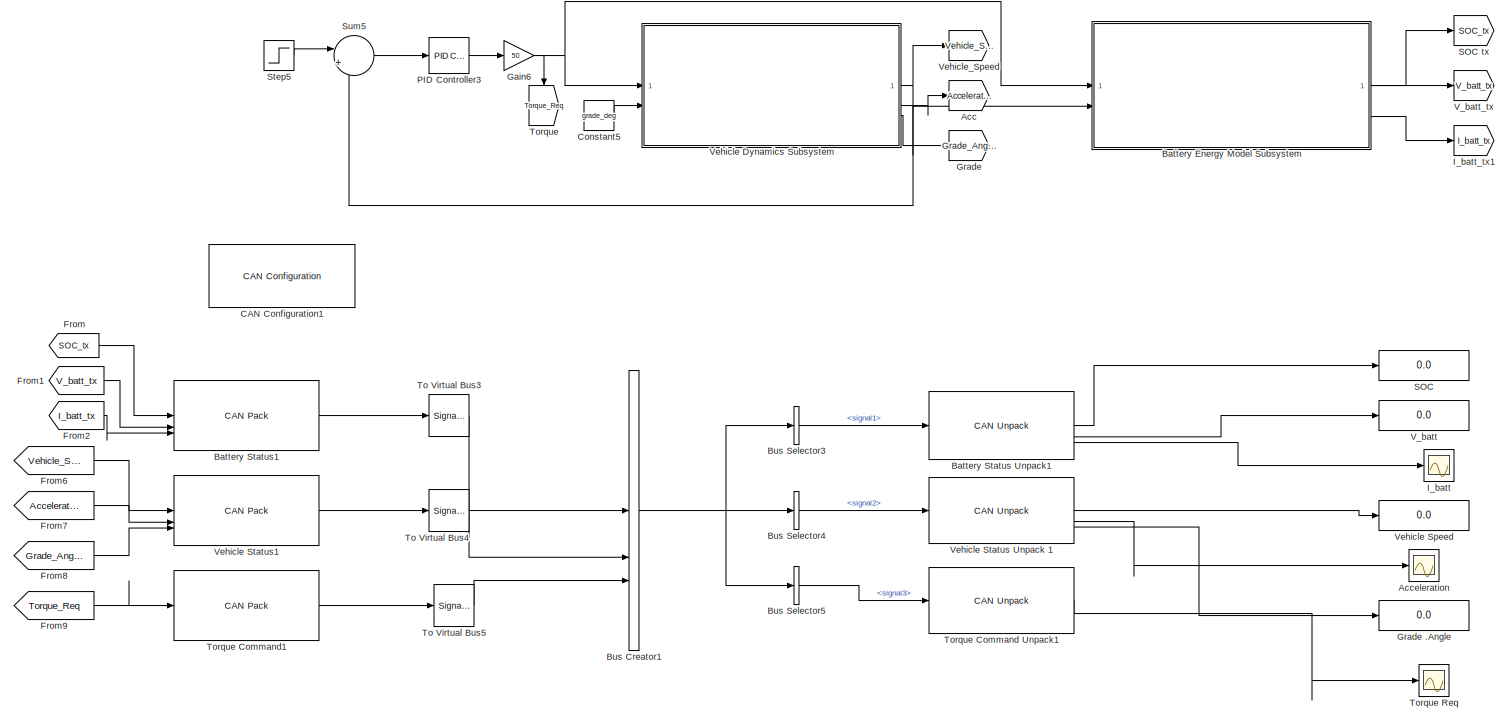
[diagram: root canvas - part 1/5, top left region]
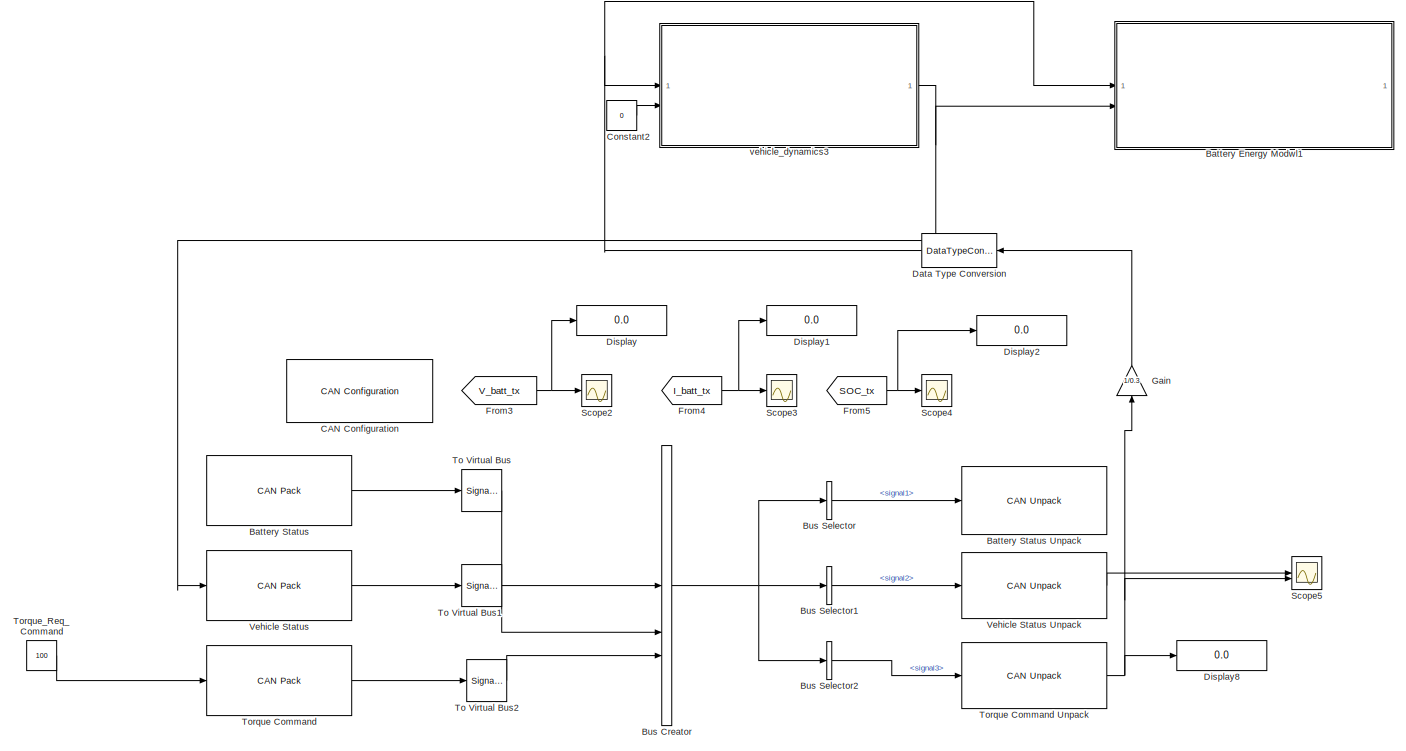
[diagram: root canvas - part 2/5, top right region]
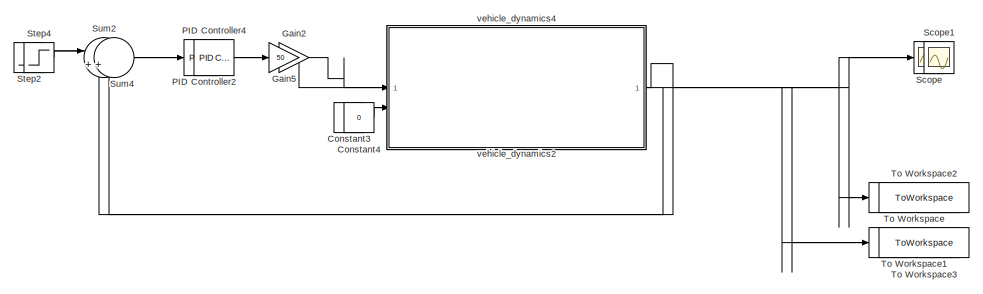
[diagram: root canvas - part 3/5, bottom right region]
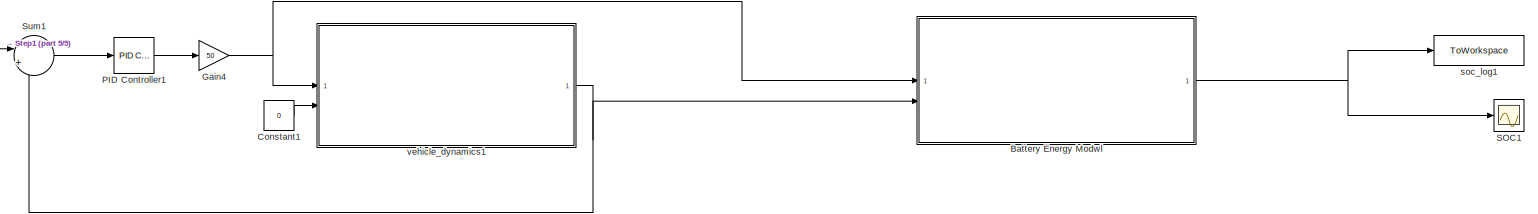
[diagram: root canvas - part 4/5, bottom right region]
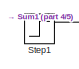
[diagram: root canvas - part 5/5, bottom right region]
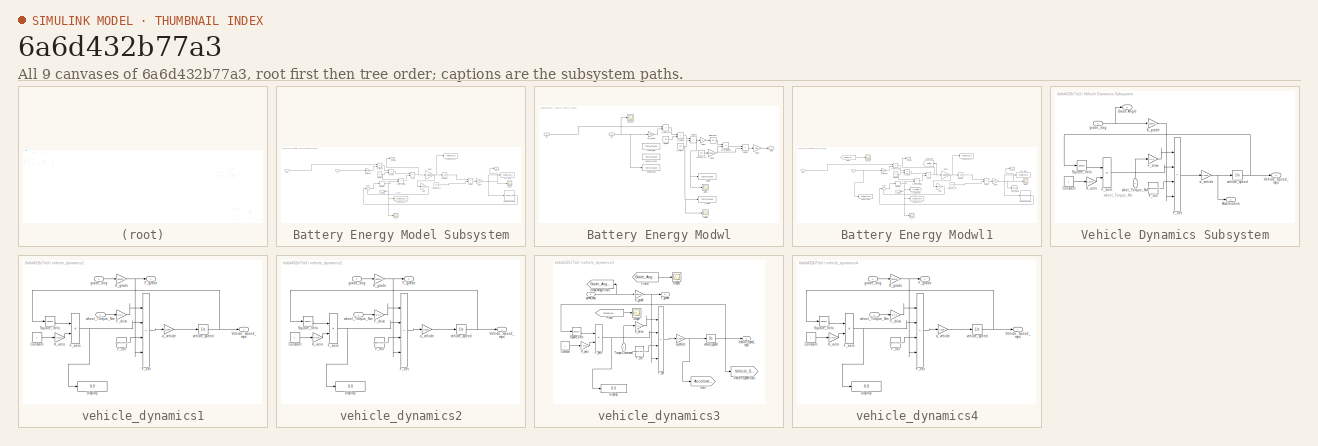
[diagram: thumbnail index - all 9 canvases of the model, root first then tree order]
MODEL slx_6a6d432b77a3
KIND model
CONFIG AbsTol = auto
CONFIG EnableMultiTasking = off
CONFIG FixedStep = auto
CONFIG MaxStep = auto
CONFIG MinStep = auto
CONFIG RelTol = 1e-3
CONFIG SampleTimeConstraint = Unconstrained
CONFIG SolverName = VariableStepAuto
CONFIG StartTime = 0.0
CONFIG StopTime = 10
BLOCK [Goto] Acc
  GotoTag = Acceleration
BLOCK [Scope] Acceleration
  Floating = off
  NumInputPorts = 1
  ScopeSpecificationString = Simulink.scopes.TimeScopeBlockCfg('CurrentConfiguration', extmgr.ConfigurationSet(extmgr.Configuration('Core','General UI',true),extmgr.Configuration('Core','Source UI',true),extmgr.Configuration('Sources','WiredSimulink',true,'DataLoggingVariableName','ScopeData4'),extmgr.Configuration('Visuals','Time Domain',true,'SerializedDisplays',{struct('MinYLimReal','-9.13','MaxYLimReal','82.17','YLabelRea...<+1405ch>
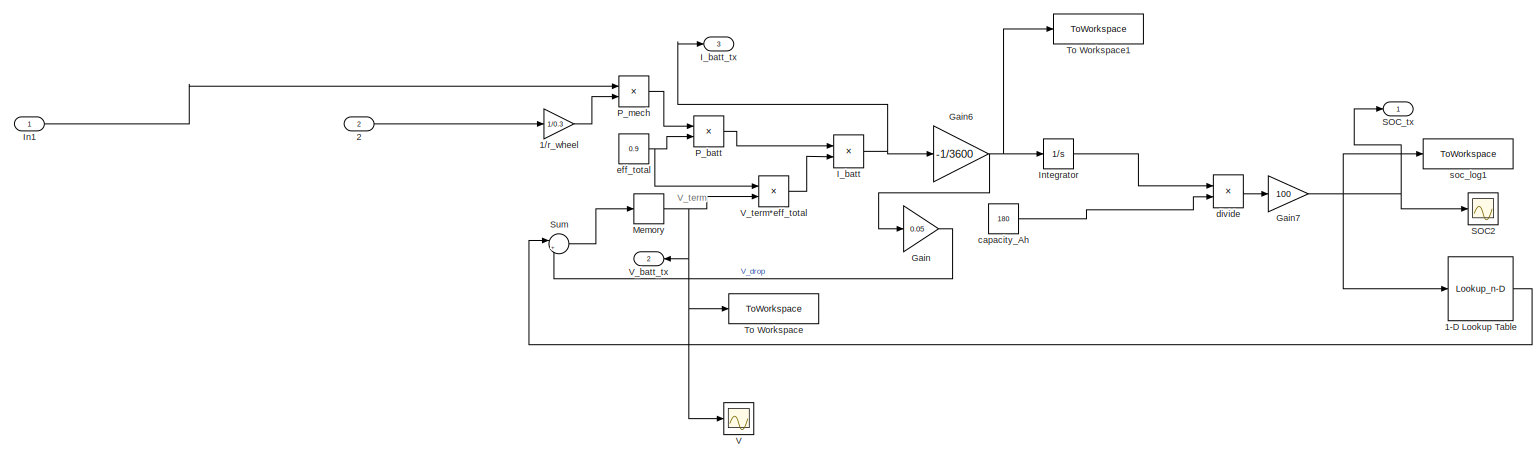
[diagram: Battery Energy Model Subsystem - part 1/1, most of the canvas]
BLOCK [SubSystem] Battery Energy Model Subsystem
BLOCK [Lookup_n-D] Battery Energy Model Subsystem/1-D Lookup Table
  BreakpointsForDimension1 = [10 20 40 60 80 100]
  InputPortMap = u0
  InternalRulePriority = Speed
  NumberOfTableDimensions = 1
  RndMeth = Simplest
  Table = [325 332 342 350 356 360]
BLOCK [Gain] Battery Energy Model Subsystem/1//r_wheel
  Gain = 1/0.3
BLOCK [Inport] Battery Energy Model Subsystem/2
  Port = 2
BLOCK [Gain] Battery Energy Model Subsystem/Gain
  Gain = 0.05
BLOCK [Gain] Battery Energy Model Subsystem/Gain6
  Gain = -1/3600
BLOCK [Gain] Battery Energy Model Subsystem/Gain7
  Gain = 100
BLOCK [Product] Battery Energy Model Subsystem/I_batt
  Inputs = */
  RndMeth = Zero
  SaturateOnIntegerOverflow = on
BLOCK [Outport] Battery Energy Model Subsystem/I_batt_tx
  Port = 3
BLOCK [Inport] Battery Energy Model Subsystem/In1
BLOCK [Integrator] Battery Energy Model Subsystem/Integrator
  InitialCondition = 180
BLOCK [Memory] Battery Energy Model Subsystem/Memory
  InitialCondition = 0.01
BLOCK [Product] Battery Energy Model Subsystem/P_batt
  Inputs = */
BLOCK [Product] Battery Energy Model Subsystem/P_mech
BLOCK [Scope] Battery Energy Model Subsystem/SOC2
  Floating = off
  NumInputPorts = 1
  ScopeSpecificationString = Simulink.scopes.TimeScopeBlockCfg('CurrentConfiguration', extmgr.ConfigurationSet(extmgr.Configuration('Core','General UI',true),extmgr.Configuration('Core','Source UI',true),extmgr.Configuration('Sources','WiredSimulink',true,'DataLoggingVariableName','ScopeData1'),extmgr.Configuration('Visuals','Time Domain',true,'SerializedDisplays',{struct('MinYLimReal','90.00000','MaxYLimReal','110.00000','YL...<+1408ch>
BLOCK [Outport] Battery Energy Model Subsystem/SOC_tx
BLOCK [Sum] Battery Energy Model Subsystem/Sum
  Inputs = |+-
BLOCK [ToWorkspace] Battery Energy Model Subsystem/To Workspace
  FixptAsFi = on
  MaxDataPoints = inf
  SampleTime = -1
  VariableName = Vterm_log
BLOCK [ToWorkspace] Battery Energy Model Subsystem/To Workspace1
  MaxDataPoints = inf
  SampleTime = -1
  VariableName = I_batt
BLOCK [Scope] Battery Energy Model Subsystem/V
  Floating = off
  NumInputPorts = 1
  ScopeSpecificationString = Simulink.scopes.TimeScopeBlockCfg('CurrentConfiguration', extmgr.ConfigurationSet(extmgr.Configuration('Core','General UI',true),extmgr.Configuration('Core','Source UI',true),extmgr.Configuration('Sources','WiredSimulink',true,'DataLoggingVariableName','ScopeData1'),extmgr.Configuration('Visuals','Time Domain',true,'SerializedDisplays',{struct('MinYLimReal','-44.98875','MaxYLimReal','404.99875','Y...<+1375ch>
BLOCK [Outport] Battery Energy Model Subsystem/V_batt_tx
  NameLocation = top
  Port = 2
BLOCK [Product] Battery Energy Model Subsystem/V_term*eff_total
BLOCK [Constant] Battery Energy Model Subsystem/capacity_Ah
  Value = 180
BLOCK [Product] Battery Energy Model Subsystem/divide
  Inputs = */
  RndMeth = Zero
  SaturateOnIntegerOverflow = on
BLOCK [Constant] Battery Energy Model Subsystem/eff_total
  Value = 0.9
BLOCK [ToWorkspace] Battery Energy Model Subsystem/soc_log1
  MaxDataPoints = inf
  SampleTime = -1
  VariableName = soc_log1
BLOCK [SubSystem] Battery Energy Modwl
  Commented = on
BLOCK [Gain] Battery Energy Modwl/1//r_wheel1
  Gain = 1/0.3
BLOCK [Gain] Battery Energy Modwl/Gain5
  Gain = 3600
BLOCK [Gain] Battery Energy Modwl/Gain6
  Gain = -1
BLOCK [Gain] Battery Energy Modwl/Gain7
  Gain = 100
BLOCK [ToWorkspace] Battery Energy Modwl/I_batt1
  MaxDataPoints = inf
  SampleTime = -1
  VariableName = I_log
BLOCK [Product] Battery Energy Modwl/I_batt_A1
  Inputs = */
  RndMeth = Zero
  SaturateOnIntegerOverflow = on
BLOCK [Scope] Battery Energy Modwl/Ibatt1
  Floating = off
  NumInputPorts = 1
  ScopeSpecificationString = Simulink.scopes.TimeScopeBlockCfg('CurrentConfiguration', extmgr.ConfigurationSet(extmgr.Configuration('Core','General UI',true),extmgr.Configuration('Core','Source UI',true),extmgr.Configuration('Sources','WiredSimulink',true),extmgr.Configuration('Visuals','Time Domain',true,'SerializedDisplays',{struct('MinYLimReal','-231.10063','MaxYLimReal','2079.90566','YLabelReal','','MinYLimMag',' 0.00000'...<+1346ch>
BLOCK [Inport] Battery Energy Modwl/In1
BLOCK [Inport] Battery Energy Modwl/In2
  Port = 2
BLOCK [Integrator] Battery Energy Modwl/Integrator1
BLOCK [Outport] Battery Energy Modwl/Out1
BLOCK [Product] Battery Energy Modwl/P_batt_w1
  Inputs = */
BLOCK [Product] Battery Energy Modwl/P_mech_w1
BLOCK [Sum] Battery Energy Modwl/Q_remaining1
  IconShape = rectangular
  Inputs = +-
BLOCK [ToWorkspace] Battery Energy Modwl/V_batt1
  MaxDataPoints = inf
  SampleTime = -1
  VariableName = V_log
BLOCK [Constant] Battery Energy Modwl/V_batt_V1
  Value = 360
BLOCK [Scope] Battery Energy Modwl/Vbatt1
  Floating = off
  NumInputPorts = 1
  ScopeSpecificationString = Simulink.scopes.TimeScopeBlockCfg('CurrentConfiguration', extmgr.ConfigurationSet(extmgr.Configuration('Core','General UI',true),extmgr.Configuration('Core','Source UI',true),extmgr.Configuration('Sources','WiredSimulink',true,'DataLoggingVariableName','ScopeData6'),extmgr.Configuration('Visuals','Time Domain',true,'SerializedDisplays',{struct('MinYLimReal','260.00000','MaxYLimReal','460.00000','Y...<+1416ch>
BLOCK [Constant] Battery Energy Modwl/capacity_Ah1
  Value = 180
BLOCK [Product] Battery Energy Modwl/divide1
  Inputs = */
  RndMeth = Zero
  SaturateOnIntegerOverflow = on
BLOCK [Constant] Battery Energy Modwl/eff_total1
  Value = 0.9
BLOCK [Scope] Battery Energy Modwl/speed1
  Floating = off
  NumInputPorts = 1
  ScopeSpecificationString = Simulink.scopes.TimeScopeBlockCfg('CurrentConfiguration', extmgr.ConfigurationSet(extmgr.Configuration('Core','General UI',true),extmgr.Configuration('Core','Source UI',true),extmgr.Configuration('Sources','WiredSimulink',true,'DataLoggingVariableName','ScopeData7'),extmgr.Configuration('Visuals','Time Domain',true,'SerializedDisplays',{struct('MinYLimReal','-2.78849','MaxYLimReal','25.09642','YLa...<+1381ch>
BLOCK [ToWorkspace] Battery Energy Modwl/speed_flat1
  Commented = on
  MaxDataPoints = inf
  SampleTime = -1
  VariableName = speed_flat1
BLOCK [ToWorkspace] Battery Energy Modwl/speed_grade1
  Commented = on
  MaxDataPoints = inf
  SampleTime = -1
  VariableName = speed_grade1
BLOCK [ToWorkspace] Battery Energy Modwl/speed_log1
  FixptAsFi = on
  MaxDataPoints = inf
  SampleTime = -1
  SaveFormat = Timeseries
  VariableName = speed_log1
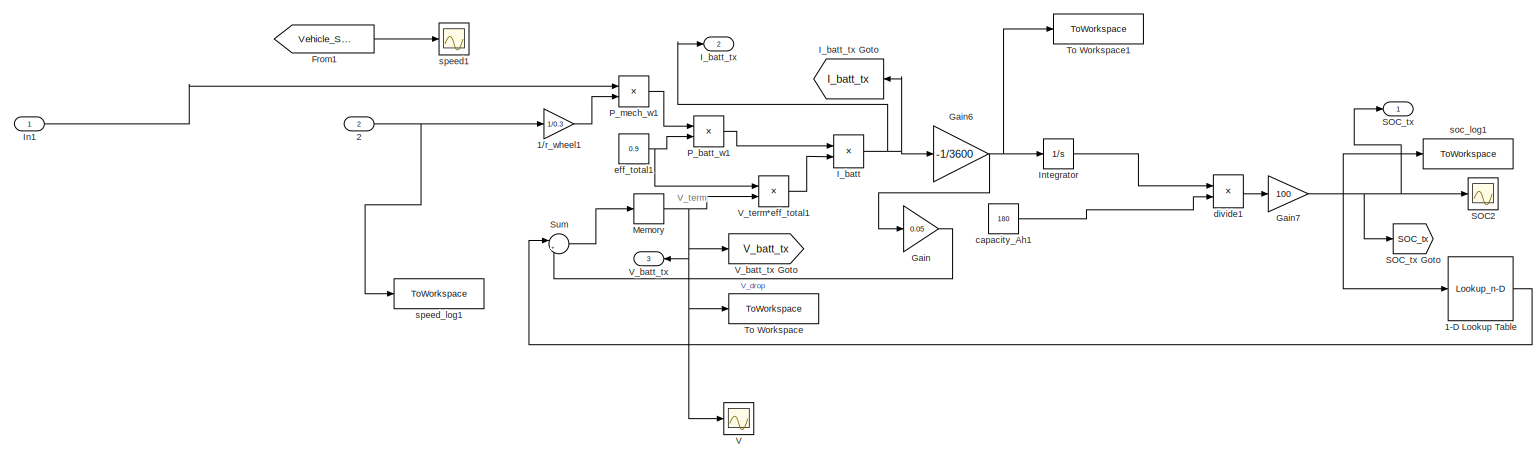
[diagram: Battery Energy Modwl1 - part 1/1, most of the canvas]
BLOCK [SubSystem] Battery Energy Modwl1
  Commented = on
BLOCK [Lookup_n-D] Battery Energy Modwl1/1-D Lookup Table
  BreakpointsForDimension1 = [10 20 40 60 80 100]
  InputPortMap = u0
  InternalRulePriority = Speed
  NumberOfTableDimensions = 1
  RndMeth = Simplest
  Table = [325 332 342 350 356 360]
BLOCK [Gain] Battery Energy Modwl1/1//r_wheel1
  Gain = 1/0.3
BLOCK [Inport] Battery Energy Modwl1/2
  Port = 2
BLOCK [From] Battery Energy Modwl1/From1
  GotoTag = Vehicle_Speed_rx
BLOCK [Gain] Battery Energy Modwl1/Gain
  Gain = 0.05
BLOCK [Gain] Battery Energy Modwl1/Gain6
  Gain = -1/3600
BLOCK [Gain] Battery Energy Modwl1/Gain7
  Gain = 100
BLOCK [Product] Battery Energy Modwl1/I_batt
  Inputs = */
  RndMeth = Zero
  SaturateOnIntegerOverflow = on
BLOCK [Outport] Battery Energy Modwl1/I_batt_tx
  Port = 2
BLOCK [Goto] Battery Energy Modwl1/I_batt_tx Goto
  GotoTag = I_batt_tx
  NameLocation = top
  TagVisibility = global
BLOCK [Inport] Battery Energy Modwl1/In1
BLOCK [Integrator] Battery Energy Modwl1/Integrator
  InitialCondition = 180
BLOCK [Memory] Battery Energy Modwl1/Memory
  InitialCondition = 0.01
BLOCK [Product] Battery Energy Modwl1/P_batt_w1
  Inputs = */
BLOCK [Product] Battery Energy Modwl1/P_mech_w1
BLOCK [Scope] Battery Energy Modwl1/SOC2
  Floating = off
  NumInputPorts = 1
  ScopeSpecificationString = Simulink.scopes.TimeScopeBlockCfg('CurrentConfiguration', extmgr.ConfigurationSet(extmgr.Configuration('Core','General UI',true),extmgr.Configuration('Core','Source UI',true),extmgr.Configuration('Sources','WiredSimulink',true,'DataLoggingVariableName','ScopeData1'),extmgr.Configuration('Visuals','Time Domain',true,'SerializedDisplays',{struct('MinYLimReal','99.98194','MaxYLimReal','100.00201','YL...<+1408ch>
BLOCK [Outport] Battery Energy Modwl1/SOC_tx
BLOCK [Goto] Battery Energy Modwl1/SOC_tx Goto
  GotoTag = SOC_tx
  TagVisibility = global
BLOCK [Sum] Battery Energy Modwl1/Sum
  Inputs = |+-
BLOCK [ToWorkspace] Battery Energy Modwl1/To Workspace
  FixptAsFi = on
  MaxDataPoints = inf
  SampleTime = -1
  VariableName = Vterm_log
BLOCK [ToWorkspace] Battery Energy Modwl1/To Workspace1
  MaxDataPoints = inf
  SampleTime = -1
  VariableName = I_batt
BLOCK [Scope] Battery Energy Modwl1/V
  Floating = off
  NumInputPorts = 1
  ScopeSpecificationString = Simulink.scopes.TimeScopeBlockCfg('CurrentConfiguration', extmgr.ConfigurationSet(extmgr.Configuration('Core','General UI',true),extmgr.Configuration('Core','Source UI',true),extmgr.Configuration('Sources','WiredSimulink',true,'DataLoggingVariableName','ScopeData1'),extmgr.Configuration('Visuals','Time Domain',true,'SerializedDisplays',{struct('MinYLimReal','-44.98875','MaxYLimReal','404.99876','Y...<+1375ch>
BLOCK [Outport] Battery Energy Modwl1/V_batt_tx
  NameLocation = top
  Port = 3
BLOCK [Goto] Battery Energy Modwl1/V_batt_tx Goto
  GotoTag = V_batt_tx
BLOCK [Product] Battery Energy Modwl1/V_term*eff_total1
BLOCK [Constant] Battery Energy Modwl1/capacity_Ah1
  Value = 180
BLOCK [Product] Battery Energy Modwl1/divide1
  Inputs = */
  RndMeth = Zero
  SaturateOnIntegerOverflow = on
BLOCK [Constant] Battery Energy Modwl1/eff_total1
  Value = 0.9
BLOCK [ToWorkspace] Battery Energy Modwl1/soc_log1
  MaxDataPoints = inf
  SampleTime = -1
  VariableName = soc_log1
BLOCK [Scope] Battery Energy Modwl1/speed1
  Floating = off
  NumInputPorts = 1
  ScopeSpecificationString = Simulink.scopes.TimeScopeBlockCfg('CurrentConfiguration', extmgr.ConfigurationSet(extmgr.Configuration('Core','General UI',true),extmgr.Configuration('Core','Source UI',true),extmgr.Configuration('Sources','WiredSimulink',true,'DataLoggingVariableName','ScopeData7'),extmgr.Configuration('Visuals','Time Domain',true,'SerializedDisplays',{struct('MinYLimReal','-1.00000','MaxYLimReal','1.00000','YLab...<+1432ch>
BLOCK [ToWorkspace] Battery Energy Modwl1/speed_log1
  Commented = on
  FixptAsFi = on
  MaxDataPoints = inf
  SampleTime = -1
  SaveFormat = Timeseries
  VariableName = speed_log1
BLOCK [Reference] Battery Status  REF=canmsglib/CAN Pack
  Commented = on
  LibrarySourceBlock = canlib/CAN Pack
  SourceBlock = canmsglib/CAN Pack
  SourceType = CAN Pack
BLOCK [Reference] Battery Status Unpack  REF=canmsglib/CAN Unpack
  Commented = on
  LibrarySourceBlock = canlib/CAN Unpack
  SourceBlock = canmsglib/CAN Unpack
  SourceType = CAN Unpack
BLOCK [Reference] Battery Status Unpack1  REF=canmsglib/CAN Unpack
  LibrarySourceBlock = canlib/CAN Unpack
  SourceBlock = canmsglib/CAN Unpack
  SourceType = CAN Unpack
BLOCK [Reference] Battery Status1  REF=canmsglib/CAN Pack
  LibrarySourceBlock = canlib/CAN Pack
  SourceBlock = canmsglib/CAN Pack
  SourceType = CAN Pack
BLOCK [BusCreator] Bus Creator
  Commented = on
  DisplayOption = bar
  InheritFromInputs = on
  Inputs = 3
BLOCK [BusCreator] Bus Creator1
  DisplayOption = bar
  InheritFromInputs = on
  Inputs = 3
BLOCK [BusSelector] Bus Selector
  Commented = on
  OutputSignals = signal1
BLOCK [BusSelector] Bus Selector1
  Commented = on
  OutputSignals = signal2
BLOCK [BusSelector] Bus Selector2
  Commented = on
  OutputSignals = signal3
BLOCK [BusSelector] Bus Selector3
  OutputSignals = signal1
BLOCK [BusSelector] Bus Selector4
  OutputSignals = signal2
BLOCK [BusSelector] Bus Selector5
  OutputSignals = signal3
BLOCK [Reference] CAN Configuration  REF=canlib/CAN Configuration
  Commented = on
  SourceBlock = canlib/CAN Configuration
  SourceType = CAN Configuration
BLOCK [Reference] CAN Configuration1  REF=canlib/CAN Configuration
  SourceBlock = canlib/CAN Configuration
  SourceType = CAN Configuration
BLOCK [Constant] Constant1
  Commented = on
  Value = 0
BLOCK [Constant] Constant2
  Commented = on
  Value = 0
BLOCK [Constant] Constant3
  Commented = on
  Value = 0
BLOCK [Constant] Constant4
  Commented = on
  Value = 0
BLOCK [Constant] Constant5
  Value = grade_deg
BLOCK [DataTypeConversion] Data Type Conversion
  Commented = on
  OutDataTypeStr = double
  RndMeth = Floor
  SaturateOnIntegerOverflow = off
BLOCK [Display] Display
  Commented = on
  Decimation = 1
BLOCK [Display] Display1
  Commented = on
  Decimation = 1
BLOCK [Display] Display2
  Commented = on
  Decimation = 1
BLOCK [Display] Display8
  Commented = on
  Decimation = 1
BLOCK [From] From
  GotoTag = SOC_tx
BLOCK [From] From1
  GotoTag = V_batt_tx
BLOCK [From] From2
  GotoTag = I_batt_tx
BLOCK [From] From3
  Commented = on
  GotoTag = V_batt_tx
  IconDisplay = Tag and signal name
BLOCK [From] From4
  Commented = on
  GotoTag = I_batt_tx
  TagVisibility = global
BLOCK [From] From5
  Commented = on
  GotoTag = SOC_tx
  TagVisibility = global
BLOCK [From] From6
  GotoTag = Vehicle_Speed
BLOCK [From] From7
  GotoTag = Acceleration
BLOCK [From] From8
  GotoTag = Grade_Angle
BLOCK [From] From9
  GotoTag = Torque_Req
BLOCK [Gain] Gain
  Commented = on
  Gain = 1/0.3
  NameLocation = right
BLOCK [Gain] Gain2
  Commented = on
  Gain = 50
BLOCK [Gain] Gain4
  Commented = on
  Gain = 50
BLOCK [Gain] Gain5
  Commented = on
  Gain = 50
BLOCK [Gain] Gain6
  Gain = 50
BLOCK [Goto] Grade
  GotoTag = Grade_Angle
BLOCK [Display] Grade .Angle
  Decimation = 1
BLOCK [Scope] I_batt
  Floating = off
  NumInputPorts = 1
  ScopeSpecificationString = Simulink.scopes.TimeScopeBlockCfg('CurrentConfiguration', extmgr.ConfigurationSet(extmgr.Configuration('Core','General UI',true),extmgr.Configuration('Core','Source UI',true),extmgr.Configuration('Sources','WiredSimulink',true,'DataLoggingVariableName','ScopeData2'),extmgr.Configuration('Visuals','Time Domain',true,'SerializedDisplays',{struct('MinYLimReal','-55.54375','MaxYLimReal','499.89375','Y...<+1393ch>
BLOCK [Goto] I_batt_tx1
  GotoTag = I_batt_tx
BLOCK [Reference] PID Controller1  REF=slpidlib/PID Controller
  Commented = on
  LibrarySourceBlock = simulink/Continuous/PID Controller
  SourceBlock = slpidlib/PID Controller
  SourceType = PID 1dof
BLOCK [Reference] PID Controller2  REF=slpidlib/PID Controller
  Commented = on
  LibrarySourceBlock = simulink/Continuous/PID Controller
  SourceBlock = slpidlib/PID Controller
  SourceType = PID 1dof
BLOCK [Reference] PID Controller3  REF=slpidlib/PID Controller
  LibrarySourceBlock = simulink/Continuous/PID Controller
  SourceBlock = slpidlib/PID Controller
  SourceType = PID 1dof
BLOCK [Reference] PID Controller4  REF=slpidlib/PID Controller
  Commented = on
  LibrarySourceBlock = simulink/Continuous/PID Controller
  SourceBlock = slpidlib/PID Controller
  SourceType = PID 1dof
BLOCK [Display] SOC
  Decimation = 1
BLOCK [Goto] SOC tx
  GotoTag = SOC_tx
BLOCK [Scope] SOC1
  Commented = on
  Floating = off
  NumInputPorts = 1
  ScopeSpecificationString = Simulink.scopes.TimeScopeBlockCfg('CurrentConfiguration', extmgr.ConfigurationSet(extmgr.Configuration('Core','General UI',true),extmgr.Configuration('Core','Source UI',true),extmgr.Configuration('Sources','WiredSimulink',true,'DataLoggingVariableName','ScopeData5'),extmgr.Configuration('Visuals','Time Domain',true,'SerializedDisplays',{struct('MinYLimReal','-100.39798','MaxYLimReal','-99.95578','...<+1393ch>
BLOCK [Scope] Scope
  Commented = on
  Floating = off
  NumInputPorts = 1
  ScopeSpecificationString = Simulink.scopes.TimeScopeBlockCfg('CurrentConfiguration', extmgr.ConfigurationSet(extmgr.Configuration('Core','General UI',true),extmgr.Configuration('Core','Source UI',true),extmgr.Configuration('Sources','WiredSimulink',true,'DataLoggingVariableName','ScopeData1'),extmgr.Configuration('Visuals','Time Domain',true,'SerializedDisplays',{struct('MinYLimReal','-2.833','MaxYLimReal','25.49702','YLabe...<+1414ch>
BLOCK [Scope] Scope1
  Commented = on
  Floating = off
  NumInputPorts = 1
  ScopeSpecificationString = Simulink.scopes.TimeScopeBlockCfg('CurrentConfiguration', extmgr.ConfigurationSet(extmgr.Configuration('Core','General UI',true),extmgr.Configuration('Core','Source UI',true),extmgr.Configuration('Sources','WiredSimulink',true,'DataLoggingVariableName','ScopeData1'),extmgr.Configuration('Visuals','Time Domain',true,'SerializedDisplays',{struct('MinYLimReal','-2.8497','MaxYLimReal','25.64727','YLab...<+1735ch>
BLOCK [Scope] Scope2
  Commented = on
  Floating = off
  NumInputPorts = 1
  ScopeSpecificationString = Simulink.scopes.TimeScopeBlockCfg('CurrentConfiguration', extmgr.ConfigurationSet(extmgr.Configuration('Core','General UI',true),extmgr.Configuration('Core','Source UI',true),extmgr.Configuration('Sources','WiredSimulink',true,'DataLoggingVariableName','ScopeData3'),extmgr.Configuration('Visuals','Time Domain',true,'SerializedDisplays',{struct('MinYLimReal','-1.00000','MaxYLimReal','1.00000','YLab...<+1403ch>
BLOCK [Scope] Scope3
  Commented = on
  Floating = off
  NumInputPorts = 1
  ScopeSpecificationString = Simulink.scopes.TimeScopeBlockCfg('CurrentConfiguration', extmgr.ConfigurationSet(extmgr.Configuration('Core','General UI',true),extmgr.Configuration('Core','Source UI',true),extmgr.Configuration('Sources','WiredSimulink',true,'DataLoggingVariableName','ScopeData4'),extmgr.Configuration('Visuals','Time Domain',true,'SerializedDisplays',{struct('MinYLimReal','-2.59562','MaxYLimReal','23.36061','YLa...<+1404ch>
BLOCK [Scope] Scope4
  Commented = on
  Floating = off
  NumInputPorts = 1
  ScopeSpecificationString = Simulink.scopes.TimeScopeBlockCfg('CurrentConfiguration', extmgr.ConfigurationSet(extmgr.Configuration('Core','General UI',true),extmgr.Configuration('Core','Source UI',true),extmgr.Configuration('Sources','WiredSimulink',true,'DataLoggingVariableName','ScopeData5'),extmgr.Configuration('Visuals','Time Domain',true,'SerializedDisplays',{struct('MinYLimReal','99.98194','MaxYLimReal','100.00201','YL...<+1409ch>
BLOCK [Scope] Scope5
  Commented = on
  Floating = off
  NumInputPorts = 2
  ScopeSpecificationString = Simulink.scopes.TimeScopeBlockCfg('CurrentConfiguration', extmgr.ConfigurationSet(extmgr.Configuration('Core','General UI',true),extmgr.Configuration('Core','Source UI',true),extmgr.Configuration('Sources','WiredSimulink',true,'DataLoggingVariableName','ScopeData1'),extmgr.Configuration('Visuals','Time Domain',true,'SerializedDisplays',{struct('MinYLimReal','-12.5','MaxYLimReal','112.5','YLabelRea...<+1424ch>
BLOCK [Step] Step1
  After = 20
  Commented = on
  SampleTime = 0
  Time = 0
BLOCK [Step] Step2
  After = 20
  Commented = on
  SampleTime = 0
  Time = 0
BLOCK [Step] Step4
  After = 20
  Commented = on
  SampleTime = 0
  Time = 0
BLOCK [Step] Step5
  After = 20
  SampleTime = 0
  Time = 0
BLOCK [Sum] Sum1
  Commented = on
  Inputs = |+-
BLOCK [Sum] Sum2
  Commented = on
  Inputs = |+-
BLOCK [Sum] Sum4
  Commented = on
  Inputs = |+-
BLOCK [Sum] Sum5
  Inputs = |+-
BLOCK [SignalConversion] To Virtual Bus
  Commented = on
  ConversionOutput = Nonvirtual bus
  OverrideOpt = off
BLOCK [SignalConversion] To Virtual Bus1
  Commented = on
  ConversionOutput = Nonvirtual bus
  OverrideOpt = off
BLOCK [SignalConversion] To Virtual Bus2
  Commented = on
  ConversionOutput = Nonvirtual bus
  OverrideOpt = off
BLOCK [SignalConversion] To Virtual Bus3
  ConversionOutput = Nonvirtual bus
  OverrideOpt = off
BLOCK [SignalConversion] To Virtual Bus4
  ConversionOutput = Nonvirtual bus
  OverrideOpt = off
BLOCK [SignalConversion] To Virtual Bus5
  ConversionOutput = Nonvirtual bus
  OverrideOpt = off
BLOCK [ToWorkspace] To Workspace
  Commented = on
  MaxDataPoints = inf
  SampleTime = -1
  VariableName = speed_flat
BLOCK [ToWorkspace] To Workspace1
  Commented = on
  MaxDataPoints = inf
  SampleTime = -1
  VariableName = speed_grade
BLOCK [ToWorkspace] To Workspace2
  Commented = on
  MaxDataPoints = inf
  SampleTime = -1
  VariableName = speed_flat2
BLOCK [ToWorkspace] To Workspace3
  Commented = on
  MaxDataPoints = inf
  SampleTime = -1
  VariableName = speed_grade2
BLOCK [Goto] Torque
  GotoTag = Torque_Req
  NameLocation = left
BLOCK [Reference] Torque Command  REF=canmsglib/CAN Pack
  Commented = on
  LibrarySourceBlock = canlib/CAN Pack
  SourceBlock = canmsglib/CAN Pack
  SourceType = CAN Pack
BLOCK [Reference] Torque Command Unpack  REF=canmsglib/CAN Unpack
  Commented = on
  LibrarySourceBlock = canlib/CAN Unpack
  SourceBlock = canmsglib/CAN Unpack
  SourceType = CAN Unpack
BLOCK [Reference] Torque Command Unpack1  REF=canmsglib/CAN Unpack
  LibrarySourceBlock = canlib/CAN Unpack
  SourceBlock = canmsglib/CAN Unpack
  SourceType = CAN Unpack
BLOCK [Reference] Torque Command1  REF=canmsglib/CAN Pack
  LibrarySourceBlock = canlib/CAN Pack
  SourceBlock = canmsglib/CAN Pack
  SourceType = CAN Pack
BLOCK [Scope] Torque Req
  Floating = off
  NumInputPorts = 1
  ScopeSpecificationString = Simulink.scopes.TimeScopeBlockCfg('CurrentConfiguration', extmgr.ConfigurationSet(extmgr.Configuration('Core','General UI',true),extmgr.Configuration('Core','Source UI',true),extmgr.Configuration('Sources','WiredSimulink',true,'DataLoggingVariableName','ScopeData3'),extmgr.Configuration('Visuals','Time Domain',true,'SerializedDisplays',{struct('MinYLimReal','-391.45','MaxYLimReal','3999.05','YLabe...<+1418ch>
BLOCK [Constant] Torque_Req_Command
  Commented = on
  Value = 100
BLOCK [Display] V_batt
  Decimation = 1
BLOCK [Goto] V_batt_tx
  GotoTag = V_batt_tx
BLOCK [SubSystem] Vehicle Dynamics Subsystem
BLOCK [Outport] Vehicle Dynamics Subsystem/Acceleration
  Port = 2
BLOCK [Constant] Vehicle Dynamics Subsystem/Constant
BLOCK [Product] Vehicle Dynamics Subsystem/F_aero
BLOCK [Gain] Vehicle Dynamics Subsystem/F_drive
  Gain = 1/0.3
BLOCK [Sum] Vehicle Dynamics Subsystem/F_net
  IconShape = rectangular
  Inputs = +---
BLOCK [Constant] Vehicle Dynamics Subsystem/F_roll
  Value = 1600*9.81*0.015
BLOCK [Outport] Vehicle Dynamics Subsystem/Grade Angle
  Port = 3
BLOCK [Gain] Vehicle Dynamics Subsystem/K_aero
  Gain = 0.3773
BLOCK [Gain] Vehicle Dynamics Subsystem/K_grade
  Gain = (1600*9.81)/100
BLOCK [Math] Vehicle Dynamics Subsystem/Square_Velo
  Operator = square
BLOCK [Outport] Vehicle Dynamics Subsystem/Vehicle_Speed_mps
BLOCK [Gain] Vehicle Dynamics Subsystem/a_vehicle
  Gain = 1/1600
BLOCK [Inport] Vehicle Dynamics Subsystem/grade_deg
  Port = 2
BLOCK [Integrator] Vehicle Dynamics Subsystem/vehicle_speed
BLOCK [Inport] Vehicle Dynamics Subsystem/whel_Torque_Nm
  NameLocation = right
BLOCK [Display] Vehicle Speed
  Decimation = 1
BLOCK [Reference] Vehicle Status  REF=canmsglib/CAN Pack
  Commented = on
  LibrarySourceBlock = canlib/CAN Pack
  SourceBlock = canmsglib/CAN Pack
  SourceType = CAN Pack
BLOCK [Reference] Vehicle Status Unpack   REF=canmsglib/CAN Unpack
  Commented = on
  LibrarySourceBlock = canlib/CAN Unpack
  SourceBlock = canmsglib/CAN Unpack
  SourceType = CAN Unpack
BLOCK [Reference] Vehicle Status Unpack 1  REF=canmsglib/CAN Unpack
  LibrarySourceBlock = canlib/CAN Unpack
  SourceBlock = canmsglib/CAN Unpack
  SourceType = CAN Unpack
BLOCK [Reference] Vehicle Status1  REF=canmsglib/CAN Pack
  LibrarySourceBlock = canlib/CAN Pack
  SourceBlock = canmsglib/CAN Pack
  SourceType = CAN Pack
BLOCK [Goto] Vehicle_Speed
  GotoTag = Vehicle_Speed
BLOCK [ToWorkspace] soc_log1
  Commented = on
  MaxDataPoints = inf
  SampleTime = -1
  VariableName = soc_log
BLOCK [SubSystem] vehicle_dynamics1
  Commented = on
BLOCK [Constant] vehicle_dynamics1/Constant
BLOCK [Display] vehicle_dynamics1/Display
  Decimation = 1
BLOCK [Product] vehicle_dynamics1/F_aero
BLOCK [Gain] vehicle_dynamics1/F_drive
  Gain = 1/0.3
BLOCK [Outport] vehicle_dynamics1/F_grade
  Port = 2
BLOCK [Sum] vehicle_dynamics1/F_net
  IconShape = rectangular
  Inputs = +---
BLOCK [Constant] vehicle_dynamics1/F_roll
  Value = 1600*9.81*0.015
BLOCK [Gain] vehicle_dynamics1/K_aero
  Gain = 0.3773
BLOCK [Gain] vehicle_dynamics1/K_grade
  Gain = (1600*9.81)/100
BLOCK [Math] vehicle_dynamics1/Square_Velo
  Operator = square
BLOCK [Outport] vehicle_dynamics1/Vehicle_Speed_mps
BLOCK [Gain] vehicle_dynamics1/a_vehicle
  Gain = 1/1600
BLOCK [Inport] vehicle_dynamics1/grade_deg
  Port = 2
BLOCK [Integrator] vehicle_dynamics1/vehicle_speed
BLOCK [Inport] vehicle_dynamics1/wheel_Torque_Nm
BLOCK [SubSystem] vehicle_dynamics2
  Commented = on
BLOCK [Constant] vehicle_dynamics2/Constant
BLOCK [Display] vehicle_dynamics2/Display
  Decimation = 1
BLOCK [Product] vehicle_dynamics2/F_aero
BLOCK [Gain] vehicle_dynamics2/F_drive
  Gain = 1/0.3
BLOCK [Outport] vehicle_dynamics2/F_grade
  Port = 2
BLOCK [Sum] vehicle_dynamics2/F_net
  IconShape = rectangular
  Inputs = +---
BLOCK [Constant] vehicle_dynamics2/F_roll
  Value = 1600*9.81*0.015
BLOCK [Gain] vehicle_dynamics2/K_aero
  Gain = 0.3773
BLOCK [Gain] vehicle_dynamics2/K_grade
  Gain = (1600*9.81)/100
BLOCK [Math] vehicle_dynamics2/Square_Velo
  Operator = square
BLOCK [Outport] vehicle_dynamics2/Vehicle_Speed_mps
BLOCK [Gain] vehicle_dynamics2/a_vehicle
  Gain = 1/1600
BLOCK [Inport] vehicle_dynamics2/grade_deg
  Port = 2
BLOCK [Integrator] vehicle_dynamics2/vehicle_speed
BLOCK [Inport] vehicle_dynamics2/wheel_Torque_Nm
BLOCK [SubSystem] vehicle_dynamics3
  Commented = on
BLOCK [Constant] vehicle_dynamics3/Constant
BLOCK [Display] vehicle_dynamics3/Display
  Decimation = 1
BLOCK [Product] vehicle_dynamics3/F_aero
BLOCK [Outport] vehicle_dynamics3/F_grade
  Port = 2
BLOCK [Sum] vehicle_dynamics3/F_net
  IconShape = rectangular
  Inputs = +---
BLOCK [Constant] vehicle_dynamics3/F_roll
  Value = 1600*9.81*0.015
BLOCK [From] vehicle_dynamics3/From
  GotoTag = Torque_Req_rx
BLOCK [From] vehicle_dynamics3/From2
  GotoTag = Grade_Angle_rx
BLOCK [Goto] vehicle_dynamics3/Goto
  GotoTag = Acceleration_tx
BLOCK [Goto] vehicle_dynamics3/Grade Angle Goto
  GotoTag = Grade_Angle_tx
  NameLocation = top
  TagVisibility = global
BLOCK [Gain] vehicle_dynamics3/K_aero
  Gain = 0.3773
BLOCK [Gain] vehicle_dynamics3/K_drive
  Gain = 1/0.3
BLOCK [Gain] vehicle_dynamics3/K_grade
  Gain = (1600*9.81)/100
BLOCK [Scope] vehicle_dynamics3/Scope
  Floating = off
  NumInputPorts = 1
  ScopeSpecificationString = Simulink.scopes.TimeScopeBlockCfg('CurrentConfiguration', extmgr.ConfigurationSet(extmgr.Configuration('Core','General UI',true),extmgr.Configuration('Core','Source UI',true),extmgr.Configuration('Sources','WiredSimulink',true,'DataLoggingVariableName','ScopeData1'),extmgr.Configuration('Visuals','Time Domain',true,'SerializedDisplays',{struct('MinYLimReal','-1.00000','MaxYLimReal','1.00000','YLab...<+1403ch>
BLOCK [Scope] vehicle_dynamics3/Scope1
  Floating = off
  NumInputPorts = 1
  ScopeSpecificationString = Simulink.scopes.TimeScopeBlockCfg('CurrentConfiguration', extmgr.ConfigurationSet(extmgr.Configuration('Core','General UI',true),extmgr.Configuration('Core','Source UI',true),extmgr.Configuration('Sources','WiredSimulink',true,'DataLoggingVariableName','ScopeData2'),extmgr.Configuration('Visuals','Time Domain',true,'SerializedDisplays',{struct('MinYLimReal','-1.00000','MaxYLimReal','1.00000','YLab...<+1403ch>
BLOCK [Math] vehicle_dynamics3/Square_Velo
  Operator = square
BLOCK [Inport] vehicle_dynamics3/Torque Command
  NameLocation = right
BLOCK [Goto] vehicle_dynamics3/Vehicle Speed Goto
  GotoTag = Vehicle_Speed_tx
  TagVisibility = global
BLOCK [Outport] vehicle_dynamics3/Vehicle_Speed_mps
BLOCK [Gain] vehicle_dynamics3/a_vehicle
  Gain = 1/1600
BLOCK [Inport] vehicle_dynamics3/grade_deg
  Port = 2
BLOCK [Integrator] vehicle_dynamics3/vehicle_speed
BLOCK [SubSystem] vehicle_dynamics4
  Commented = on
BLOCK [Constant] vehicle_dynamics4/Constant
BLOCK [Display] vehicle_dynamics4/Display
  Decimation = 1
BLOCK [Product] vehicle_dynamics4/F_aero
BLOCK [Gain] vehicle_dynamics4/F_drive
  Gain = 1/0.3
BLOCK [Outport] vehicle_dynamics4/F_grade
  Port = 2
BLOCK [Sum] vehicle_dynamics4/F_net
  IconShape = rectangular
  Inputs = +---
BLOCK [Constant] vehicle_dynamics4/F_roll
  Value = 1600*9.81*0.015
BLOCK [Gain] vehicle_dynamics4/K_aero
  Gain = 0.3773
BLOCK [Gain] vehicle_dynamics4/K_grade
  Gain = (1600*9.81)/100
BLOCK [Math] vehicle_dynamics4/Square_Velo
  Operator = square
BLOCK [Outport] vehicle_dynamics4/Vehicle_Speed_mps
BLOCK [Gain] vehicle_dynamics4/a_vehicle
  Gain = 1/1600
BLOCK [Inport] vehicle_dynamics4/grade_deg
  Port = 2
BLOCK [Integrator] vehicle_dynamics4/vehicle_speed
BLOCK [Inport] vehicle_dynamics4/wheel_Torque_Nm
ANNOTATION Battery Energy Model Subsystem: V_term
ANNOTATION Battery Energy Modwl1: V_term
ANNOTATION Vehicle Dynamics Subsystem: wheel_Torque_Nm
LINE Battery Energy Model Subsystem/1-D Lookup Table:1 -> Battery Energy Model Subsystem/Sum:1
LINE Battery Energy Model Subsystem/1//r_wheel:1 -> Battery Energy Model Subsystem/P_mech:2
LINE Battery Energy Model Subsystem/2:1 -> Battery Energy Model Subsystem/1//r_wheel:1
NET Battery Energy Model Subsystem/Gain6:1 -> Battery Energy Model Subsystem/Gain:1, Battery Energy Model Subsystem/Integrator:1, Battery Energy Model Subsystem/To Workspace1:1
NET Battery Energy Model Subsystem/Gain7:1 -> Battery Energy Model Subsystem/1-D Lookup Table:1, Battery Energy Model Subsystem/SOC2:1, Battery Energy Model Subsystem/SOC_tx:1, Battery Energy Model Subsystem/soc_log1:1
LINE Battery Energy Model Subsystem/Gain:1 -> Battery Energy Model Subsystem/Sum:2
NET Battery Energy Model Subsystem/I_batt:1 -> Battery Energy Model Subsystem/Gain6:1, Battery Energy Model Subsystem/I_batt_tx:1
LINE Battery Energy Model Subsystem/In1:1 -> Battery Energy Model Subsystem/P_mech:1
LINE Battery Energy Model Subsystem/Integrator:1 -> Battery Energy Model Subsystem/divide:1
NET Battery Energy Model Subsystem/Memory:1 -> Battery Energy Model Subsystem/To Workspace:1, Battery Energy Model Subsystem/V:1, Battery Energy Model Subsystem/V_batt_tx:1, Battery Energy Model Subsystem/V_term*eff_total:2
LINE Battery Energy Model Subsystem/P_batt:1 -> Battery Energy Model Subsystem/I_batt:1
LINE Battery Energy Model Subsystem/P_mech:1 -> Battery Energy Model Subsystem/P_batt:1
LINE Battery Energy Model Subsystem/Sum:1 -> Battery Energy Model Subsystem/Memory:1
LINE Battery Energy Model Subsystem/V_term*eff_total:1 -> Battery Energy Model Subsystem/I_batt:2
LINE Battery Energy Model Subsystem/capacity_Ah:1 -> Battery Energy Model Subsystem/divide:2
LINE Battery Energy Model Subsystem/divide:1 -> Battery Energy Model Subsystem/Gain7:1
NET Battery Energy Model Subsystem/eff_total:1 -> Battery Energy Model Subsystem/P_batt:2, Battery Energy Model Subsystem/V_term*eff_total:1
LINE Battery Energy Model Subsystem:1 -> SOC tx:1
LINE Battery Energy Model Subsystem:2 -> V_batt_tx:1
LINE Battery Energy Model Subsystem:3 -> I_batt_tx1:1
LINE Battery Energy Modwl/1//r_wheel1:1 -> Battery Energy Modwl/P_mech_w1:2
NET Battery Energy Modwl/Gain5:1 -> Battery Energy Modwl/Q_remaining1:2, Battery Energy Modwl/divide1:2
LINE Battery Energy Modwl/Gain6:1 -> Battery Energy Modwl/Integrator1:1
LINE Battery Energy Modwl/Gain7:1 -> Battery Energy Modwl/Out1:1
NET Battery Energy Modwl/I_batt_A1:1 -> Battery Energy Modwl/Gain6:1, Battery Energy Modwl/I_batt1:1, Battery Energy Modwl/Ibatt1:1
LINE Battery Energy Modwl/In1:1 -> Battery Energy Modwl/P_mech_w1:1
NET Battery Energy Modwl/In2:1 -> Battery Energy Modwl/1//r_wheel1:1, Battery Energy Modwl/speed1:1, Battery Energy Modwl/speed_log1:1
LINE Battery Energy Modwl/Integrator1:1 -> Battery Energy Modwl/Q_remaining1:1
LINE Battery Energy Modwl/P_batt_w1:1 -> Battery Energy Modwl/I_batt_A1:1
LINE Battery Energy Modwl/P_mech_w1:1 -> Battery Energy Modwl/P_batt_w1:1
LINE Battery Energy Modwl/Q_remaining1:1 -> Battery Energy Modwl/divide1:1
NET Battery Energy Modwl/V_batt_V1:1 -> Battery Energy Modwl/I_batt_A1:2, Battery Energy Modwl/V_batt1:1, Battery Energy Modwl/Vbatt1:1
LINE Battery Energy Modwl/capacity_Ah1:1 -> Battery Energy Modwl/Gain5:1
LINE Battery Energy Modwl/divide1:1 -> Battery Energy Modwl/Gain7:1
LINE Battery Energy Modwl/eff_total1:1 -> Battery Energy Modwl/P_batt_w1:2
LINE Battery Energy Modwl1/1-D Lookup Table:1 -> Battery Energy Modwl1/Sum:1
LINE Battery Energy Modwl1/1//r_wheel1:1 -> Battery Energy Modwl1/P_mech_w1:2
NET Battery Energy Modwl1/2:1 -> Battery Energy Modwl1/1//r_wheel1:1, Battery Energy Modwl1/speed_log1:1
LINE Battery Energy Modwl1/From1:1 -> Battery Energy Modwl1/speed1:1
NET Battery Energy Modwl1/Gain6:1 -> Battery Energy Modwl1/Gain:1, Battery Energy Modwl1/Integrator:1, Battery Energy Modwl1/To Workspace1:1
NET Battery Energy Modwl1/Gain7:1 -> Battery Energy Modwl1/1-D Lookup Table:1, Battery Energy Modwl1/SOC2:1, Battery Energy Modwl1/SOC_tx Goto:1, Battery Energy Modwl1/SOC_tx:1, Battery Energy Modwl1/soc_log1:1
LINE Battery Energy Modwl1/Gain:1 -> Battery Energy Modwl1/Sum:2
NET Battery Energy Modwl1/I_batt:1 -> Battery Energy Modwl1/Gain6:1, Battery Energy Modwl1/I_batt_tx Goto:1, Battery Energy Modwl1/I_batt_tx:1
LINE Battery Energy Modwl1/In1:1 -> Battery Energy Modwl1/P_mech_w1:1
LINE Battery Energy Modwl1/Integrator:1 -> Battery Energy Modwl1/divide1:1
NET Battery Energy Modwl1/Memory:1 -> Battery Energy Modwl1/To Workspace:1, Battery Energy Modwl1/V:1, Battery Energy Modwl1/V_batt_tx Goto:1, Battery Energy Modwl1/V_batt_tx:1, Battery Energy Modwl1/V_term*eff_total1:2
LINE Battery Energy Modwl1/P_batt_w1:1 -> Battery Energy Modwl1/I_batt:1
LINE Battery Energy Modwl1/P_mech_w1:1 -> Battery Energy Modwl1/P_batt_w1:1
LINE Battery Energy Modwl1/Sum:1 -> Battery Energy Modwl1/Memory:1
LINE Battery Energy Modwl1/V_term*eff_total1:1 -> Battery Energy Modwl1/I_batt:2
LINE Battery Energy Modwl1/capacity_Ah1:1 -> Battery Energy Modwl1/divide1:2
LINE Battery Energy Modwl1/divide1:1 -> Battery Energy Modwl1/Gain7:1
NET Battery Energy Modwl1/eff_total1:1 -> Battery Energy Modwl1/P_batt_w1:2, Battery Energy Modwl1/V_term*eff_total1:1
NET Battery Energy Modwl:1 -> SOC1:1, soc_log1:1
LINE Battery Status Unpack1:1 -> SOC:1
LINE Battery Status Unpack1:2 -> V_batt:1
LINE Battery Status Unpack1:3 -> I_batt:1
LINE Battery Status1:1 -> To Virtual Bus3:1
LINE Battery Status:1 -> To Virtual Bus:1
NET Bus Creator1:1 -> Bus Selector3:1, Bus Selector4:1, Bus Selector5:1
NET Bus Creator:1 -> Bus Selector1:1, Bus Selector2:1, Bus Selector:1
LINE Bus Selector1:1 -> Vehicle Status Unpack :1
LINE Bus Selector2:1 -> Torque Command Unpack:1
LINE Bus Selector3:1 -> Battery Status Unpack1:1
LINE Bus Selector4:1 -> Vehicle Status Unpack 1:1
LINE Bus Selector5:1 -> Torque Command Unpack1:1
LINE Bus Selector:1 -> Battery Status Unpack:1
LINE Constant1:1 -> vehicle_dynamics1:2
LINE Constant2:1 -> vehicle_dynamics3:2
LINE Constant3:1 -> vehicle_dynamics2:2
LINE Constant4:1 -> vehicle_dynamics4:2
LINE Constant5:1 -> Vehicle Dynamics Subsystem:2
NET Data Type Conversion:1 -> Battery Energy Modwl1:1, vehicle_dynamics3:1
LINE From1:1 -> Battery Status1:2
LINE From2:1 -> Battery Status1:3
NET From3:1 -> Display:1, Scope2:1
NET From4:1 -> Display1:1, Scope3:1
NET From5:1 -> Display2:1, Scope4:1
LINE From6:1 -> Vehicle Status1:1
LINE From7:1 -> Vehicle Status1:2
LINE From8:1 -> Vehicle Status1:3
LINE From9:1 -> Torque Command1:1
LINE From:1 -> Battery Status1:1
LINE Gain2:1 -> vehicle_dynamics4:1
NET Gain4:1 -> Battery Energy Modwl:1, vehicle_dynamics1:1
LINE Gain5:1 -> vehicle_dynamics2:1
NET Gain6:1 -> Battery Energy Model Subsystem:1, Torque:1, Vehicle Dynamics Subsystem:1
LINE Gain:1 -> Data Type Conversion:1
LINE PID Controller1:1 -> Gain4:1
LINE PID Controller2:1 -> Gain5:1
LINE PID Controller3:1 -> Gain6:1
LINE PID Controller4:1 -> Gain2:1
LINE Step1:1 -> Sum1:1
LINE Step2:1 -> Sum2:1
LINE Step4:1 -> Sum4:1
LINE Step5:1 -> Sum5:1
LINE Sum1:1 -> PID Controller1:1
LINE Sum2:1 -> PID Controller2:1
LINE Sum4:1 -> PID Controller4:1
LINE Sum5:1 -> PID Controller3:1
LINE To Virtual Bus1:1 -> Bus Creator:2
LINE To Virtual Bus2:1 -> Bus Creator:3
LINE To Virtual Bus3:1 -> Bus Creator1:1
LINE To Virtual Bus4:1 -> Bus Creator1:2
LINE To Virtual Bus5:1 -> Bus Creator1:3
LINE To Virtual Bus:1 -> Bus Creator:1
LINE Torque Command Unpack1:1 -> Torque Req:1
NET Torque Command Unpack:1 -> Display8:1, Gain:1, Scope5:2
LINE Torque Command1:1 -> To Virtual Bus5:1
LINE Torque Command:1 -> To Virtual Bus2:1
LINE Torque_Req_Command:1 -> Torque Command:1
LINE Vehicle Dynamics Subsystem/Constant:1 -> Vehicle Dynamics Subsystem/K_aero:1
LINE Vehicle Dynamics Subsystem/F_aero:1 -> Vehicle Dynamics Subsystem/F_net:2
LINE Vehicle Dynamics Subsystem/F_drive:1 -> Vehicle Dynamics Subsystem/F_net:1
LINE Vehicle Dynamics Subsystem/F_net:1 -> Vehicle Dynamics Subsystem/a_vehicle:1
LINE Vehicle Dynamics Subsystem/F_roll:1 -> Vehicle Dynamics Subsystem/F_net:3
LINE Vehicle Dynamics Subsystem/K_aero:1 -> Vehicle Dynamics Subsystem/F_aero:2
LINE Vehicle Dynamics Subsystem/K_grade:1 -> Vehicle Dynamics Subsystem/F_net:4
LINE Vehicle Dynamics Subsystem/Square_Velo:1 -> Vehicle Dynamics Subsystem/F_aero:1
NET Vehicle Dynamics Subsystem/a_vehicle:1 -> Vehicle Dynamics Subsystem/Acceleration:1, Vehicle Dynamics Subsystem/vehicle_speed:1
NET Vehicle Dynamics Subsystem/grade_deg:1 -> Vehicle Dynamics Subsystem/Grade Angle:1, Vehicle Dynamics Subsystem/K_grade:1
NET Vehicle Dynamics Subsystem/vehicle_speed:1 -> Vehicle Dynamics Subsystem/Square_Velo:1, Vehicle Dynamics Subsystem/Vehicle_Speed_mps:1
LINE Vehicle Dynamics Subsystem/whel_Torque_Nm:1 -> Vehicle Dynamics Subsystem/F_drive:1
NET Vehicle Dynamics Subsystem:1 -> Battery Energy Model Subsystem:2, Sum5:2, Vehicle_Speed:1
LINE Vehicle Dynamics Subsystem:2 -> Acc:1
LINE Vehicle Dynamics Subsystem:3 -> Grade:1
LINE Vehicle Status Unpack 1:1 -> Vehicle Speed:1
LINE Vehicle Status Unpack 1:2 -> Acceleration:1
LINE Vehicle Status Unpack 1:3 -> Grade .Angle:1
LINE Vehicle Status Unpack :1 -> Scope5:1
LINE Vehicle Status1:1 -> To Virtual Bus4:1
LINE Vehicle Status:1 -> To Virtual Bus1:1
LINE vehicle_dynamics1/Constant:1 -> vehicle_dynamics1/K_aero:1
NET vehicle_dynamics1/F_aero:1 -> vehicle_dynamics1/Display:1, vehicle_dynamics1/F_net:2
LINE vehicle_dynamics1/F_drive:1 -> vehicle_dynamics1/F_net:1
LINE vehicle_dynamics1/F_net:1 -> vehicle_dynamics1/a_vehicle:1
LINE vehicle_dynamics1/F_roll:1 -> vehicle_dynamics1/F_net:3
LINE vehicle_dynamics1/K_aero:1 -> vehicle_dynamics1/F_aero:2
NET vehicle_dynamics1/K_grade:1 -> vehicle_dynamics1/F_grade:1, vehicle_dynamics1/F_net:4
LINE vehicle_dynamics1/Square_Velo:1 -> vehicle_dynamics1/F_aero:1
LINE vehicle_dynamics1/a_vehicle:1 -> vehicle_dynamics1/vehicle_speed:1
LINE vehicle_dynamics1/grade_deg:1 -> vehicle_dynamics1/K_grade:1
NET vehicle_dynamics1/vehicle_speed:1 -> vehicle_dynamics1/Square_Velo:1, vehicle_dynamics1/Vehicle_Speed_mps:1
LINE vehicle_dynamics1/wheel_Torque_Nm:1 -> vehicle_dynamics1/F_drive:1
NET vehicle_dynamics1:1 -> Battery Energy Modwl:2, Sum1:2
LINE vehicle_dynamics2/Constant:1 -> vehicle_dynamics2/K_aero:1
NET vehicle_dynamics2/F_aero:1 -> vehicle_dynamics2/Display:1, vehicle_dynamics2/F_net:2
LINE vehicle_dynamics2/F_drive:1 -> vehicle_dynamics2/F_net:1
LINE vehicle_dynamics2/F_net:1 -> vehicle_dynamics2/a_vehicle:1
LINE vehicle_dynamics2/F_roll:1 -> vehicle_dynamics2/F_net:3
LINE vehicle_dynamics2/K_aero:1 -> vehicle_dynamics2/F_aero:2
NET vehicle_dynamics2/K_grade:1 -> vehicle_dynamics2/F_grade:1, vehicle_dynamics2/F_net:4
LINE vehicle_dynamics2/Square_Velo:1 -> vehicle_dynamics2/F_aero:1
LINE vehicle_dynamics2/a_vehicle:1 -> vehicle_dynamics2/vehicle_speed:1
LINE vehicle_dynamics2/grade_deg:1 -> vehicle_dynamics2/K_grade:1
NET vehicle_dynamics2/vehicle_speed:1 -> vehicle_dynamics2/Square_Velo:1, vehicle_dynamics2/Vehicle_Speed_mps:1
LINE vehicle_dynamics2/wheel_Torque_Nm:1 -> vehicle_dynamics2/F_drive:1
NET vehicle_dynamics2:1 -> Scope:1, Sum2:2, To Workspace1:1, To Workspace:1
LINE vehicle_dynamics3/Constant:1 -> vehicle_dynamics3/K_aero:1
NET vehicle_dynamics3/F_aero:1 -> vehicle_dynamics3/Display:1, vehicle_dynamics3/F_net:2
LINE vehicle_dynamics3/F_net:1 -> vehicle_dynamics3/a_vehicle:1
LINE vehicle_dynamics3/F_roll:1 -> vehicle_dynamics3/F_net:3
LINE vehicle_dynamics3/From2:1 -> vehicle_dynamics3/Scope1:1
LINE vehicle_dynamics3/From:1 -> vehicle_dynamics3/Scope:1
LINE vehicle_dynamics3/K_aero:1 -> vehicle_dynamics3/F_aero:2
LINE vehicle_dynamics3/K_drive:1 -> vehicle_dynamics3/F_net:1
NET vehicle_dynamics3/K_grade:1 -> vehicle_dynamics3/F_grade:1, vehicle_dynamics3/F_net:4
LINE vehicle_dynamics3/Square_Velo:1 -> vehicle_dynamics3/F_aero:1
LINE vehicle_dynamics3/Torque Command:1 -> vehicle_dynamics3/K_drive:1
NET vehicle_dynamics3/a_vehicle:1 -> vehicle_dynamics3/Goto:1, vehicle_dynamics3/vehicle_speed:1
NET vehicle_dynamics3/grade_deg:1 -> vehicle_dynamics3/Grade Angle Goto:1, vehicle_dynamics3/K_grade:1
NET vehicle_dynamics3/vehicle_speed:1 -> vehicle_dynamics3/Square_Velo:1, vehicle_dynamics3/Vehicle Speed Goto:1, vehicle_dynamics3/Vehicle_Speed_mps:1
NET vehicle_dynamics3:1 -> Battery Energy Modwl1:2, Vehicle Status:1
LINE vehicle_dynamics4/Constant:1 -> vehicle_dynamics4/K_aero:1
NET vehicle_dynamics4/F_aero:1 -> vehicle_dynamics4/Display:1, vehicle_dynamics4/F_net:2
LINE vehicle_dynamics4/F_drive:1 -> vehicle_dynamics4/F_net:1
LINE vehicle_dynamics4/F_net:1 -> vehicle_dynamics4/a_vehicle:1
LINE vehicle_dynamics4/F_roll:1 -> vehicle_dynamics4/F_net:3
LINE vehicle_dynamics4/K_aero:1 -> vehicle_dynamics4/F_aero:2
NET vehicle_dynamics4/K_grade:1 -> vehicle_dynamics4/F_grade:1, vehicle_dynamics4/F_net:4
LINE vehicle_dynamics4/Square_Velo:1 -> vehicle_dynamics4/F_aero:1
LINE vehicle_dynamics4/a_vehicle:1 -> vehicle_dynamics4/vehicle_speed:1
LINE vehicle_dynamics4/grade_deg:1 -> vehicle_dynamics4/K_grade:1
NET vehicle_dynamics4/vehicle_speed:1 -> vehicle_dynamics4/Square_Velo:1, vehicle_dynamics4/Vehicle_Speed_mps:1
LINE vehicle_dynamics4/wheel_Torque_Nm:1 -> vehicle_dynamics4/F_drive:1
NET vehicle_dynamics4:1 -> Scope1:1, Sum4:2, To Workspace2:1, To Workspace3:1
note: NET lines group one-source signal fan-out (src -> all destinations, sorted); 1:1 wires keep LINE
